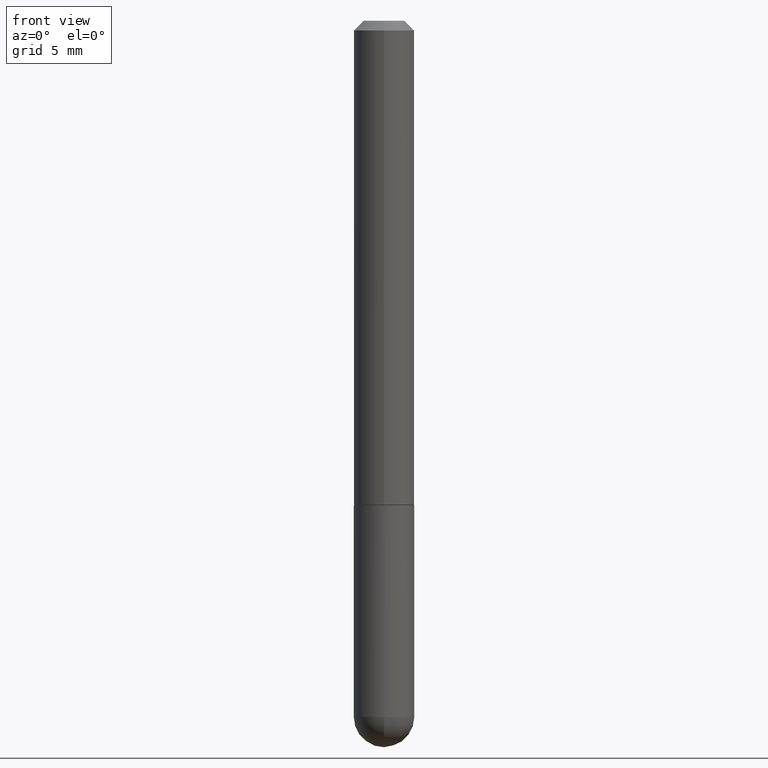
[diagram: clean part render]
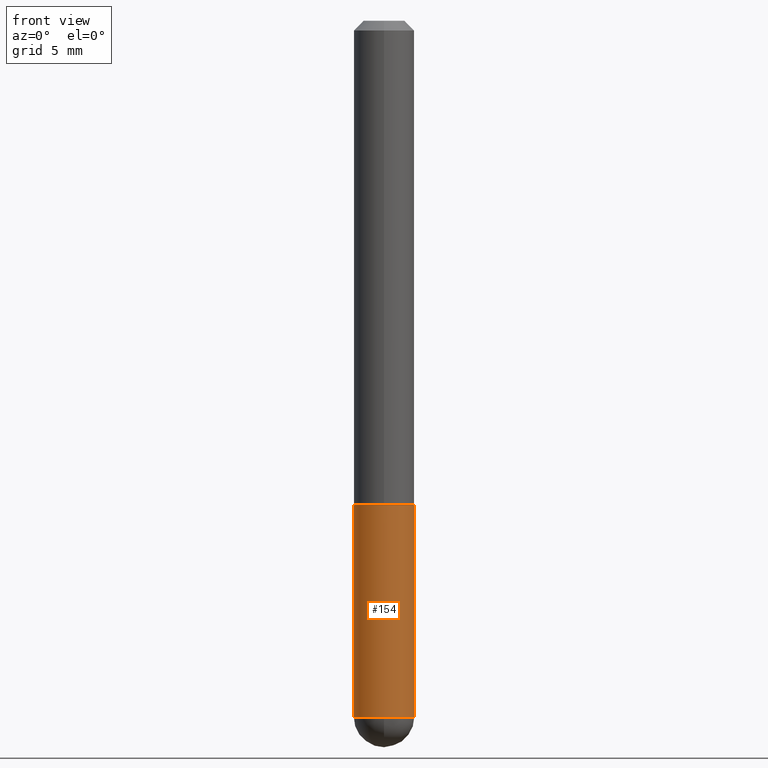
[diagram: same view with one face highlighted and labeled with its STEP entity id]
A machine part, front view. The second image highlights one B-rep face of the part: STEP entity #154.
In plain terms, the highlighted cylindrical surface (edge-blend (fillet) strip) has radius 1.5875 mm, axis along (-0, 0, 1).
Its self-contained STEP definition (entity closure, byte-faithful):
#1 = AXIS2_PLACEMENT_3D ( 'NONE', #37, #151, #59 ) ;
#4 = DIRECTION ( 'NONE',  ( -2.445468806185136597E-29, 3.491481338843145583E-15, 1.000000000000000000 ) ) ;
#17 = ORIENTED_EDGE ( 'NONE', *, *, #306, .T. ) ;
#26 = DIRECTION ( 'NONE',  ( -2.445468806185136597E-29, 3.491481338843145583E-15, 1.000000000000000000 ) ) ;
#36 = VECTOR ( 'NONE', #210, 39.37007874015748143 ) ;
#37 = CARTESIAN_POINT ( 'NONE',  ( 3.515361408891134418E-29, -5.019004424587023131E-15, -1.437500000000000222 ) ) ;
#59 = DIRECTION ( 'NONE',  ( 1.000000000000000000, -6.982962677686268288E-15, 0.000000000000000000 ) ) ;
#69 = AXIS2_PLACEMENT_3D ( 'NONE', #193, #323, #327 ) ;
#77 = CARTESIAN_POINT ( 'NONE',  ( 0.06249999999999995143, -4.691678049070475040E-15, -1.437500000000000222 ) ) ;
#97 = CARTESIAN_POINT ( 'NONE',  ( -0.06250000000000001388, -3.811153671865021543E-15, -0.9999999999999996669 ) ) ;
#111 = ORIENTED_EDGE ( 'NONE', *, *, #181, .T. ) ;
#115 = CARTESIAN_POINT ( 'NONE',  ( 0.06250000000000001388, -3.927916506198536858E-15, -0.9999999999999996669 ) ) ;
#117 = DIRECTION ( 'NONE',  ( -2.445468806185136877E-29, 3.491481338843145188E-15, 1.000000000000000000 ) ) ;
#125 = DIRECTION ( 'NONE',  ( 1.000000000000000000, -6.982962677686268288E-15, 0.000000000000000000 ) ) ;
#136 = VERTEX_POINT ( 'NONE', #115 ) ;
#143 = CARTESIAN_POINT ( 'NONE',  ( -0.06249999999999997918, 4.440892098500624683E-16, -3.074334431409315413E-30 ) ) ;
#144 = ORIENTED_EDGE ( 'NONE', *, *, #318, .T. ) ;
#150 = CARTESIAN_POINT ( 'NONE',  ( -0.06249999999999995143, -3.811153671865021543E-15, -1.437500000000000222 ) ) ;
#151 = DIRECTION ( 'NONE',  ( -2.445468806185136597E-29, 3.491481338843145583E-15, 1.000000000000000000 ) ) ;
#154 = ADVANCED_FACE ( 'NONE', ( #276 ), #173, .T. ) ;
#168 = EDGE_CURVE ( 'NONE', #299, #265, #207, .T. ) ;
#171 = CIRCLE ( 'NONE', #1, 0.06249999999999995143 ) ;
#173 = CYLINDRICAL_SURFACE ( 'NONE', #211, 0.06249999999999997918 ) ;
#181 = EDGE_CURVE ( 'NONE', #396, #136, #370, .T. ) ;
#193 = CARTESIAN_POINT ( 'NONE',  ( 2.445468806185136036E-29, -3.491481338843144399E-15, -0.9999999999999996669 ) ) ;
#194 = ORIENTED_EDGE ( 'NONE', *, *, #404, .F. ) ;
#207 = LINE ( 'NONE', #143, #384 ) ;
#209 = CARTESIAN_POINT ( 'NONE',  ( 0.000000000000000000, 0.000000000000000000, 0.000000000000000000 ) ) ;
#210 = DIRECTION ( 'NONE',  ( -2.445468806185136877E-29, 3.491481338843145188E-15, 1.000000000000000000 ) ) ;
#211 = AXIS2_PLACEMENT_3D ( 'NONE', #209, #26, #343 ) ;
#227 = CIRCLE ( 'NONE', #314, 0.06249999999999995143 ) ;
#230 = ORIENTED_EDGE ( 'NONE', *, *, #168, .F. ) ;
#265 = VERTEX_POINT ( 'NONE', #97 ) ;
#276 = FACE_OUTER_BOUND ( 'NONE', #292, .T. ) ;
#286 = CARTESIAN_POINT ( 'NONE',  ( 3.515361408891134418E-29, -5.019004424587023131E-15, -1.437500000000000222 ) ) ;
#290 = CIRCLE ( 'NONE', #69, 0.06250000000000001388 ) ;
#292 = EDGE_LOOP ( 'NONE', ( #230, #17, #144, #111, #194 ) ) ;
#299 = VERTEX_POINT ( 'NONE', #150 ) ;
#306 = EDGE_CURVE ( 'NONE', #299, #373, #171, .T. ) ;
#311 = CARTESIAN_POINT ( 'NONE',  ( 0.06249999999999997918, -4.364351673553915708E-16, 3.047610484872459170E-30 ) ) ;
#314 = AXIS2_PLACEMENT_3D ( 'NONE', #286, #4, #125 ) ;
#318 = EDGE_CURVE ( 'NONE', #373, #396, #227, .T. ) ;
#323 = DIRECTION ( 'NONE',  ( -2.445468806185136597E-29, 3.491481338843145583E-15, 1.000000000000000000 ) ) ;
#327 = DIRECTION ( 'NONE',  ( 1.000000000000000000, -6.982962677686269077E-15, 0.000000000000000000 ) ) ;
#343 = DIRECTION ( 'NONE',  ( 1.000000000000000000, -6.982962677686267499E-15, 4.876176775795936353E-29 ) ) ;
#370 = LINE ( 'NONE', #311, #36 ) ;
#373 = VERTEX_POINT ( 'NONE', #389 ) ;
#384 = VECTOR ( 'NONE', #117, 39.37007874015748143 ) ;
#389 = CARTESIAN_POINT ( 'NONE',  ( -4.440892098500294840E-16, -0.06250000000000532907, -1.437500000000000000 ) ) ;
#396 = VERTEX_POINT ( 'NONE', #77 ) ;
#404 = EDGE_CURVE ( 'NONE', #265, #136, #290, .T. ) ;